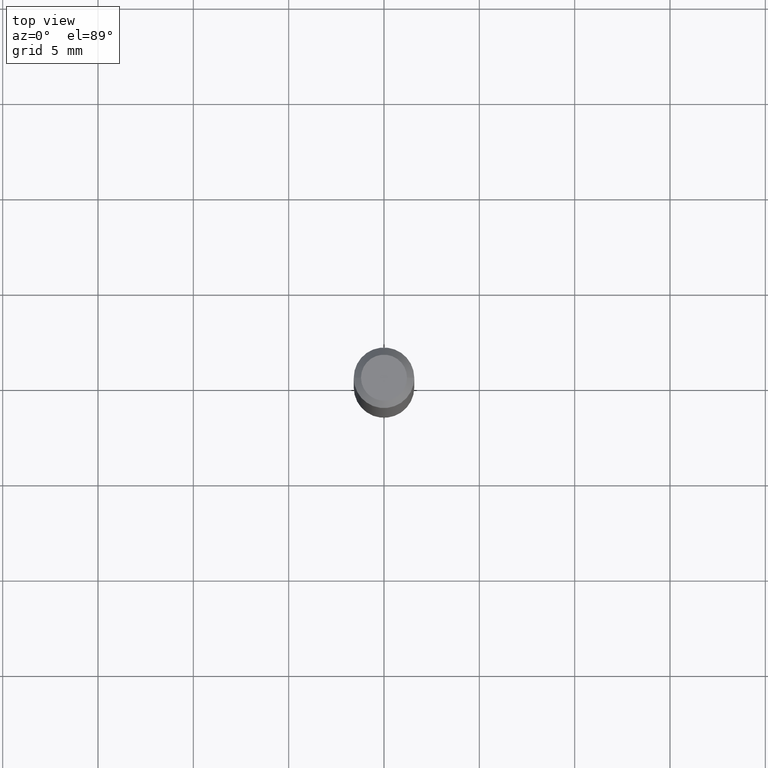
[diagram: clean part render]
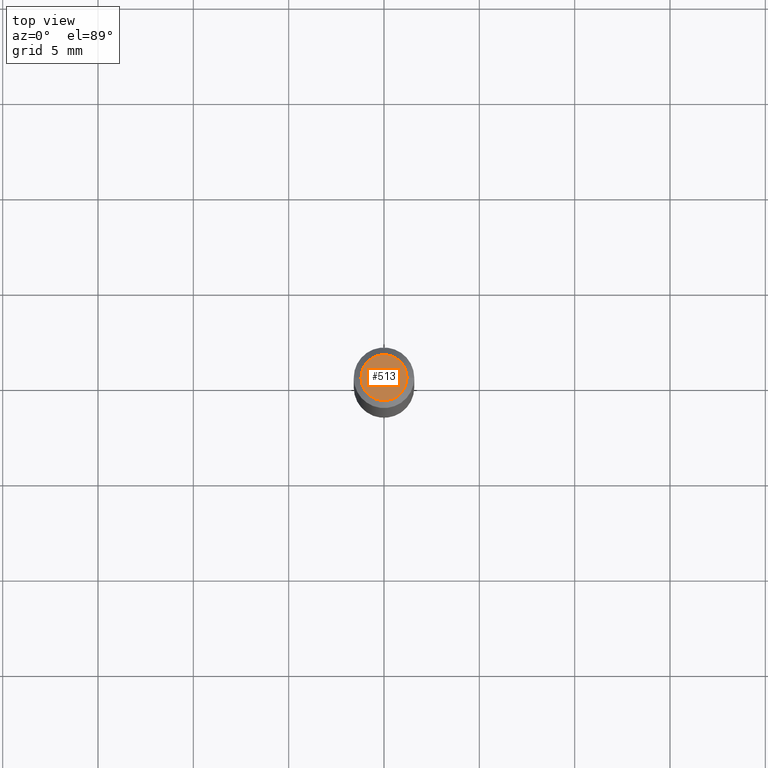
[diagram: same view with one face highlighted and labeled with its STEP entity id]
A machine part, top view. The second image highlights one B-rep face of the part: STEP entity #513.
In plain terms, the highlighted planar face has unit normal (0, -0, -1).
Its self-contained STEP definition (entity closure, byte-faithful):
#30 = CARTESIAN_POINT ( 'NONE',  ( 0.04750000000000000749, -4.035134999187568762E-16, 2.731847993664288856E-16 ) ) ;
#52 = DIRECTION ( 'NONE',  ( 1.000000000000000000, -6.982962677686266711E-15, 4.852736867747365086E-29 ) ) ;
#64 = FACE_OUTER_BOUND ( 'NONE', #167, .T. ) ;
#69 = AXIS2_PLACEMENT_3D ( 'NONE', #294, #304, #135 ) ;
#90 = AXIS2_PLACEMENT_3D ( 'NONE', #374, #368, #52 ) ;
#135 = DIRECTION ( 'NONE',  ( 1.000000000000000000, -6.982962677686266711E-15, 4.852736867747365086E-29 ) ) ;
#167 = EDGE_LOOP ( 'NONE', ( #270, #393 ) ) ;
#225 = DIRECTION ( 'NONE',  ( 2.438088387897960049E-29, -3.491481338843145188E-15, -1.000000000000000000 ) ) ;
#253 = EDGE_CURVE ( 'NONE', #297, #425, #317, .T. ) ;
#266 = CARTESIAN_POINT ( 'NONE',  ( -0.04750000000000000749, 3.578768372314221353E-16, 2.731847993664239060E-16 ) ) ;
#267 = PLANE ( 'NONE',  #274 ) ;
#270 = ORIENTED_EDGE ( 'NONE', *, *, #253, .T. ) ;
#274 = AXIS2_PLACEMENT_3D ( 'NONE', #490, #225, #407 ) ;
#294 = CARTESIAN_POINT ( 'NONE',  ( -6.680649051745406845E-45, 9.538196290434862081E-31, 2.731847993664263218E-16 ) ) ;
#297 = VERTEX_POINT ( 'NONE', #266 ) ;
#304 = DIRECTION ( 'NONE',  ( -2.445468806185136597E-29, 3.491481338843145583E-15, 1.000000000000000000 ) ) ;
#317 = CIRCLE ( 'NONE', #90, 0.04750000000000000749 ) ;
#368 = DIRECTION ( 'NONE',  ( -2.445468806185136597E-29, 3.491481338843145583E-15, 1.000000000000000000 ) ) ;
#374 = CARTESIAN_POINT ( 'NONE',  ( -6.680649051745406845E-45, 9.538196290434862081E-31, 2.731847993664263218E-16 ) ) ;
#393 = ORIENTED_EDGE ( 'NONE', *, *, #483, .T. ) ;
#407 = DIRECTION ( 'NONE',  ( -1.000000000000000000, 6.982962677686265922E-15, -4.876176775795935793E-29 ) ) ;
#425 = VERTEX_POINT ( 'NONE', #30 ) ;
#440 = CIRCLE ( 'NONE', #69, 0.04750000000000000749 ) ;
#483 = EDGE_CURVE ( 'NONE', #425, #297, #440, .T. ) ;
#490 = CARTESIAN_POINT ( 'NONE',  ( 3.316907271900976589E-16, 0.04750000000000000749, -2.925296391183627249E-17 ) ) ;
#513 = ADVANCED_FACE ( 'NONE', ( #64 ), #267, .F. ) ;